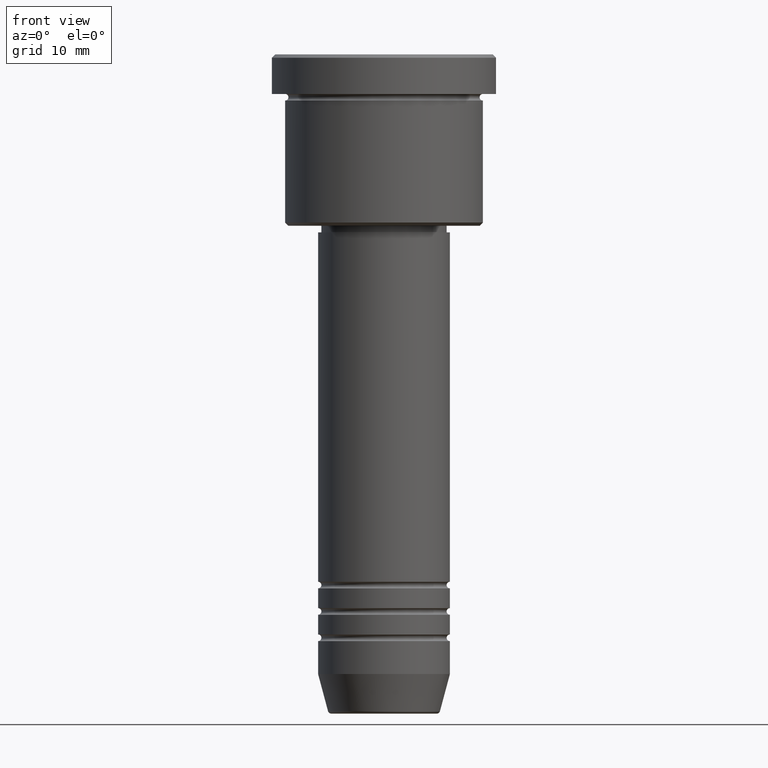
[diagram: clean part render]
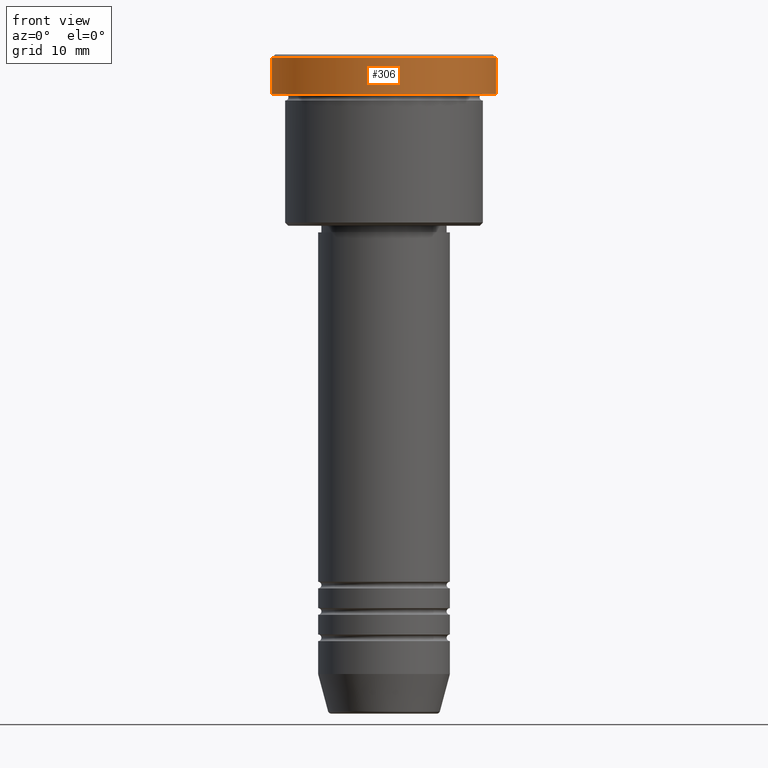
[diagram: same view with one face highlighted and labeled with its STEP entity id]
A machine part, front view. The second image highlights one B-rep face of the part: STEP entity #306.
In plain terms, the highlighted cylindrical surface (partial cylindrical patch) has radius 17 mm, axis along (-0, -0, 1).
Its self-contained STEP definition (entity closure, byte-faithful):
#26 = DIRECTION ( 'NONE',  ( -0.000000000000000000, -0.000000000000000000, 1.000000000000000000 ) ) ;
#42 = FACE_OUTER_BOUND ( 'NONE', #147, .T. ) ;
#47 = AXIS2_PLACEMENT_3D ( 'NONE', #739, #910, #196 ) ;
#111 = VERTEX_POINT ( 'NONE', #918 ) ;
#147 = EDGE_LOOP ( 'NONE', ( #409, #1136, #589, #625 ) ) ;
#148 = CARTESIAN_POINT ( 'NONE',  ( -17.00000000000000000, 2.081899558550500280E-15, -5.999999999999994671 ) ) ;
#155 = DIRECTION ( 'NONE',  ( 1.000000000000000000, 0.000000000000000000, 0.000000000000000000 ) ) ;
#161 = CIRCLE ( 'NONE', #462, 17.00000000000000000 ) ;
#196 = DIRECTION ( 'NONE',  ( 1.000000000000000000, 0.000000000000000000, 0.000000000000000000 ) ) ;
#306 = ADVANCED_FACE ( 'NONE', ( #42 ), #494, .T. ) ;
#401 = CARTESIAN_POINT ( 'NONE',  ( 0.000000000000000000, 0.000000000000000000, 0.000000000000000000 ) ) ;
#409 = ORIENTED_EDGE ( 'NONE', *, *, #765, .F. ) ;
#462 = AXIS2_PLACEMENT_3D ( 'NONE', #1167, #698, #155 ) ;
#494 = CYLINDRICAL_SURFACE ( 'NONE', #977, 17.00000000000000000 ) ;
#542 = VECTOR ( 'NONE', #26, 1000.000000000000000 ) ;
#561 = EDGE_CURVE ( 'NONE', #751, #111, #788, .T. ) ;
#570 = EDGE_CURVE ( 'NONE', #802, #751, #1113, .T. ) ;
#578 = VECTOR ( 'NONE', #633, 1000.000000000000000 ) ;
#589 = ORIENTED_EDGE ( 'NONE', *, *, #570, .T. ) ;
#606 = CARTESIAN_POINT ( 'NONE',  ( 17.00000000000000000, 0.000000000000000000, -5.999999999999994671 ) ) ;
#625 = ORIENTED_EDGE ( 'NONE', *, *, #561, .T. ) ;
#633 = DIRECTION ( 'NONE',  ( -0.000000000000000000, -0.000000000000000000, 1.000000000000000000 ) ) ;
#656 = CARTESIAN_POINT ( 'NONE',  ( 17.00000000000000000, 0.000000000000000000, 0.000000000000000000 ) ) ;
#665 = LINE ( 'NONE', #1127, #542 ) ;
#667 = DIRECTION ( 'NONE',  ( 1.000000000000000000, 0.000000000000000000, 0.000000000000000000 ) ) ;
#698 = DIRECTION ( 'NONE',  ( -0.000000000000000000, -0.000000000000000000, 1.000000000000000000 ) ) ;
#739 = CARTESIAN_POINT ( 'NONE',  ( 0.000000000000000000, 0.000000000000000000, -0.5000000000000073275 ) ) ;
#751 = VERTEX_POINT ( 'NONE', #842 ) ;
#765 = EDGE_CURVE ( 'NONE', #1160, #111, #665, .T. ) ;
#782 = DIRECTION ( 'NONE',  ( -0.000000000000000000, -0.000000000000000000, 1.000000000000000000 ) ) ;
#788 = CIRCLE ( 'NONE', #47, 17.00000000000000000 ) ;
#802 = VERTEX_POINT ( 'NONE', #606 ) ;
#842 = CARTESIAN_POINT ( 'NONE',  ( 17.00000000000000000, 0.000000000000000000, -0.5000000000000073275 ) ) ;
#910 = DIRECTION ( 'NONE',  ( 0.000000000000000000, 0.000000000000000000, -1.000000000000000000 ) ) ;
#918 = CARTESIAN_POINT ( 'NONE',  ( -17.00000000000000000, 2.081899558550500280E-15, -0.5000000000000073275 ) ) ;
#964 = EDGE_CURVE ( 'NONE', #1160, #802, #161, .T. ) ;
#977 = AXIS2_PLACEMENT_3D ( 'NONE', #401, #782, #667 ) ;
#1113 = LINE ( 'NONE', #656, #578 ) ;
#1127 = CARTESIAN_POINT ( 'NONE',  ( -17.00000000000000000, 2.081899558550500280E-15, 0.000000000000000000 ) ) ;
#1136 = ORIENTED_EDGE ( 'NONE', *, *, #964, .T. ) ;
#1160 = VERTEX_POINT ( 'NONE', #148 ) ;
#1167 = CARTESIAN_POINT ( 'NONE',  ( 0.000000000000000000, 0.000000000000000000, -5.999999999999994671 ) ) ;